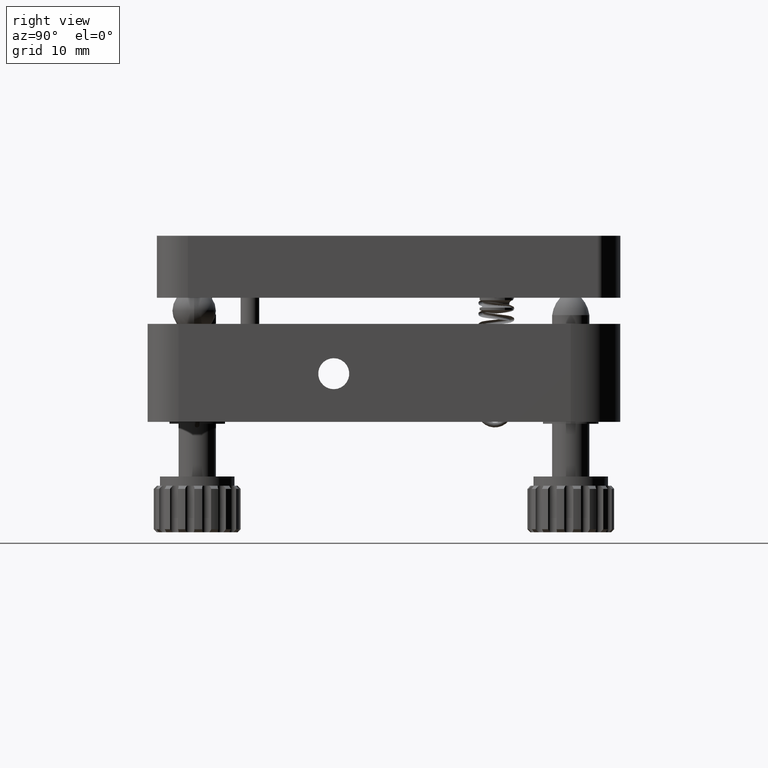
[diagram: clean part render]
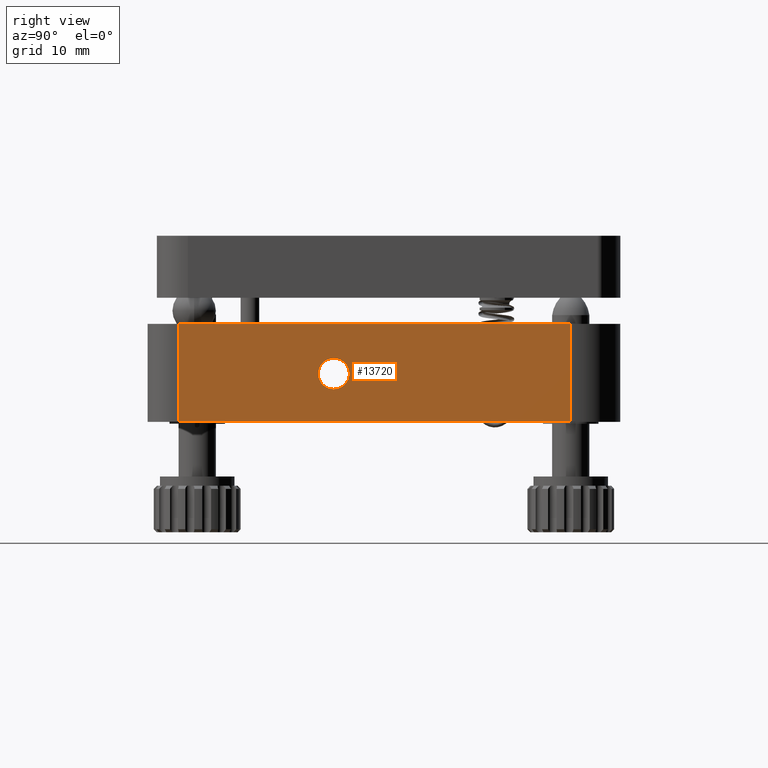
[diagram: same view with one face highlighted and labeled with its STEP entity id]
A machine part, right view. The second image highlights one B-rep face of the part: STEP entity #13720.
In plain terms, the highlighted planar face has unit normal (1, 0, -0).
Its self-contained STEP definition (entity closure, byte-faithful):
#186 = CIRCLE ( 'NONE', #2260, 2.499999999999988500 ) ;
#440 = EDGE_CURVE ( 'NONE', #25076, #3271, #11129, .T. ) ;
#996 = LINE ( 'NONE', #31817, #7253 ) ;
#1722 = VECTOR ( 'NONE', #33698, 1000.000000000000000 ) ;
#2260 = AXIS2_PLACEMENT_3D ( 'NONE', #5211, #23914, #7864 ) ;
#3271 = VERTEX_POINT ( 'NONE', #11503 ) ;
#4247 = PLANE ( 'NONE',  #30136 ) ;
#4580 = ORIENTED_EDGE ( 'NONE', *, *, #8755, .T. ) ;
#5211 = CARTESIAN_POINT ( 'NONE',  ( 22.83969881042773800, 10.95503669957007600, 34.16161499869944200 ) ) ;
#5858 = CARTESIAN_POINT ( 'NONE',  ( 22.83969881042773800, 10.95503669957007600, 31.66161499869945600 ) ) ;
#7253 = VECTOR ( 'NONE', #18417, 1000.000000000000000 ) ;
#7864 = DIRECTION ( 'NONE',  ( 0.0000000000000000000, 0.0000000000000000000, -1.000000000000000000 ) ) ;
#8755 = EDGE_CURVE ( 'NONE', #31991, #12802, #996, .T. ) ;
#9743 = CARTESIAN_POINT ( 'NONE',  ( 22.83969881042773800, -14.04496330042988600, 42.20000000000001700 ) ) ;
#10316 = EDGE_CURVE ( 'NONE', #20407, #12139, #186, .T. ) ;
#10555 = EDGE_LOOP ( 'NONE', ( #28104, #10666 ) ) ;
#10666 = ORIENTED_EDGE ( 'NONE', *, *, #24703, .F. ) ;
#10701 = DIRECTION ( 'NONE',  ( 0.0000000000000000000, 0.0000000000000000000, -1.000000000000000000 ) ) ;
#11129 = LINE ( 'NONE', #15821, #31663 ) ;
#11503 = CARTESIAN_POINT ( 'NONE',  ( 22.83969881042773800, 49.15503669957007600, 26.40000000000001300 ) ) ;
#11515 = DIRECTION ( 'NONE',  ( 1.000000000000000000, -0.0000000000000000000, -0.0000000000000000000 ) ) ;
#11873 = ORIENTED_EDGE ( 'NONE', *, *, #440, .F. ) ;
#11936 = ORIENTED_EDGE ( 'NONE', *, *, #25514, .T. ) ;
#12139 = VERTEX_POINT ( 'NONE', #12165 ) ;
#12165 = CARTESIAN_POINT ( 'NONE',  ( 22.83969881042773800, 10.95503669957007600, 36.66161499869942700 ) ) ;
#12375 = DIRECTION ( 'NONE',  ( 0.0000000000000000000, 0.0000000000000000000, 1.000000000000000000 ) ) ;
#12802 = VERTEX_POINT ( 'NONE', #13731 ) ;
#13720 = ADVANCED_FACE ( 'NONE', ( #33407, #25467 ), #4247, .T. ) ;
#13731 = CARTESIAN_POINT ( 'NONE',  ( 22.83969881042773800, -14.04496330042988600, 26.40000000000001300 ) ) ;
#15821 = CARTESIAN_POINT ( 'NONE',  ( 22.83969881042773800, 49.15503669957007600, 42.20000000000001700 ) ) ;
#17456 = VECTOR ( 'NONE', #31654, 1000.000000000000000 ) ;
#18417 = DIRECTION ( 'NONE',  ( 0.0000000000000000000, 0.0000000000000000000, -1.000000000000000000 ) ) ;
#19406 = AXIS2_PLACEMENT_3D ( 'NONE', #27555, #11515, #30264 ) ;
#20407 = VERTEX_POINT ( 'NONE', #5858 ) ;
#23057 = LINE ( 'NONE', #31027, #1722 ) ;
#23914 = DIRECTION ( 'NONE',  ( 1.000000000000000000, -0.0000000000000000000, -0.0000000000000000000 ) ) ;
#24680 = LINE ( 'NONE', #28983, #17456 ) ;
#24703 = EDGE_CURVE ( 'NONE', #12139, #20407, #26939, .T. ) ;
#25076 = VERTEX_POINT ( 'NONE', #31863 ) ;
#25467 = FACE_OUTER_BOUND ( 'NONE', #28993, .T. ) ;
#25514 = EDGE_CURVE ( 'NONE', #12802, #3271, #23057, .T. ) ;
#26012 = ORIENTED_EDGE ( 'NONE', *, *, #30014, .F. ) ;
#26939 = CIRCLE ( 'NONE', #19406, 2.499999999999988500 ) ;
#27555 = CARTESIAN_POINT ( 'NONE',  ( 22.83969881042773800, 10.95503669957007600, 34.16161499869944200 ) ) ;
#28104 = ORIENTED_EDGE ( 'NONE', *, *, #10316, .F. ) ;
#28472 = DIRECTION ( 'NONE',  ( 1.000000000000000000, 0.0000000000000000000, -0.0000000000000000000 ) ) ;
#28983 = CARTESIAN_POINT ( 'NONE',  ( 22.83969881042773800, -14.04496330042988600, 42.20000000000001700 ) ) ;
#28993 = EDGE_LOOP ( 'NONE', ( #11936, #11873, #26012, #4580 ) ) ;
#30014 = EDGE_CURVE ( 'NONE', #31991, #25076, #24680, .T. ) ;
#30136 = AXIS2_PLACEMENT_3D ( 'NONE', #9743, #28472, #12375 ) ;
#30264 = DIRECTION ( 'NONE',  ( 0.0000000000000000000, 0.0000000000000000000, -1.000000000000000000 ) ) ;
#31027 = CARTESIAN_POINT ( 'NONE',  ( 22.83969881042773800, -14.04496330042988600, 26.40000000000001300 ) ) ;
#31654 = DIRECTION ( 'NONE',  ( 0.0000000000000000000, 1.000000000000000000, 0.0000000000000000000 ) ) ;
#31663 = VECTOR ( 'NONE', #10701, 1000.000000000000000 ) ;
#31817 = CARTESIAN_POINT ( 'NONE',  ( 22.83969881042773800, -14.04496330042988600, 42.20000000000001700 ) ) ;
#31863 = CARTESIAN_POINT ( 'NONE',  ( 22.83969881042773800, 49.15503669957007600, 42.20000000000001700 ) ) ;
#31991 = VERTEX_POINT ( 'NONE', #33721 ) ;
#33407 = FACE_BOUND ( 'NONE', #10555, .T. ) ;
#33698 = DIRECTION ( 'NONE',  ( 0.0000000000000000000, 1.000000000000000000, 0.0000000000000000000 ) ) ;
#33721 = CARTESIAN_POINT ( 'NONE',  ( 22.83969881042773800, -14.04496330042988600, 42.20000000000001700 ) ) ;